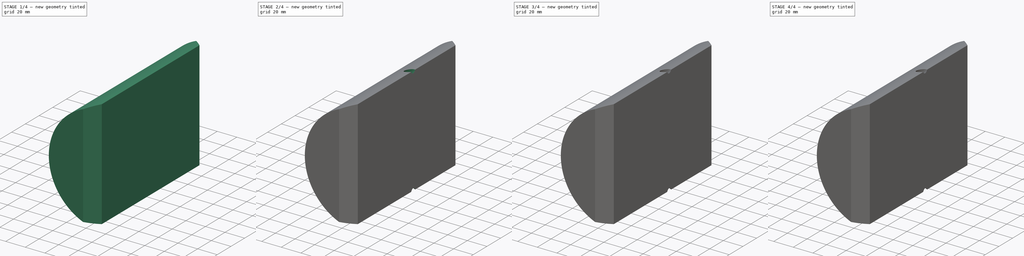
[diagram: build sequence overview — one tinted view per stage of 4, left to right]
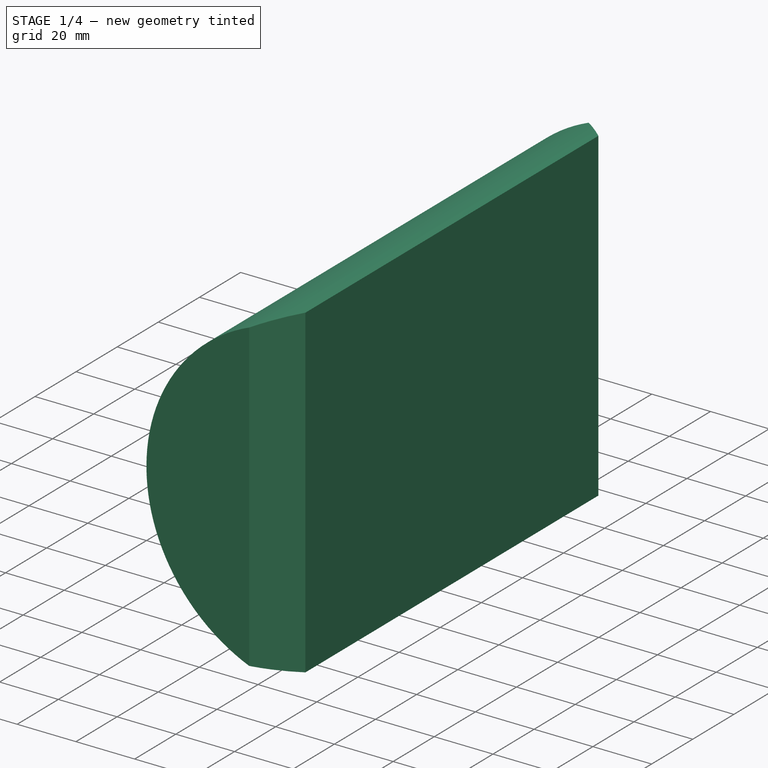
[diagram: stage 1 of 4 — iso view after this stage's code; geometry added in this stage tinted green]
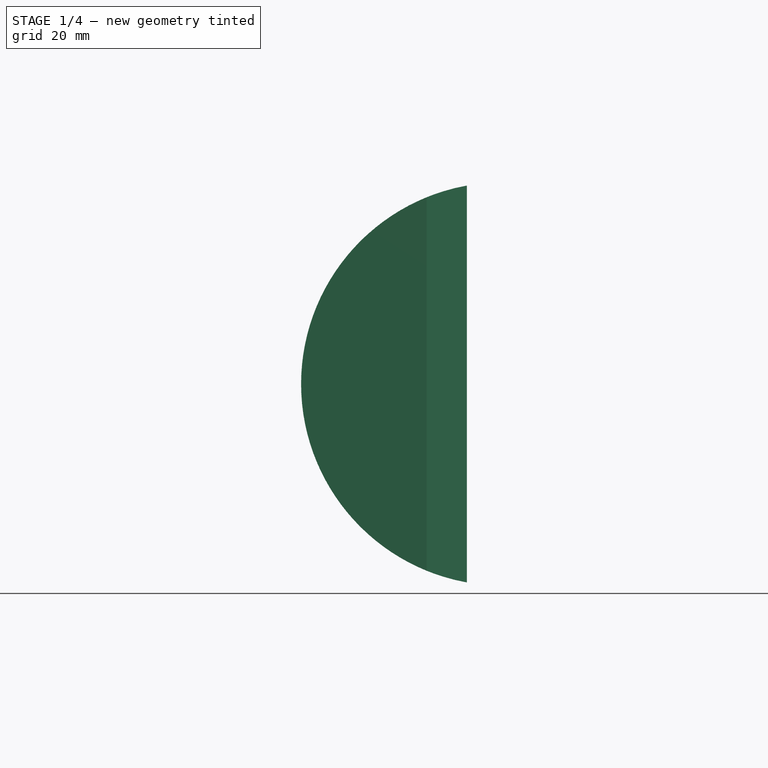
[diagram: stage 1 of 4 — front view after this stage's code; geometry added in this stage tinted green]
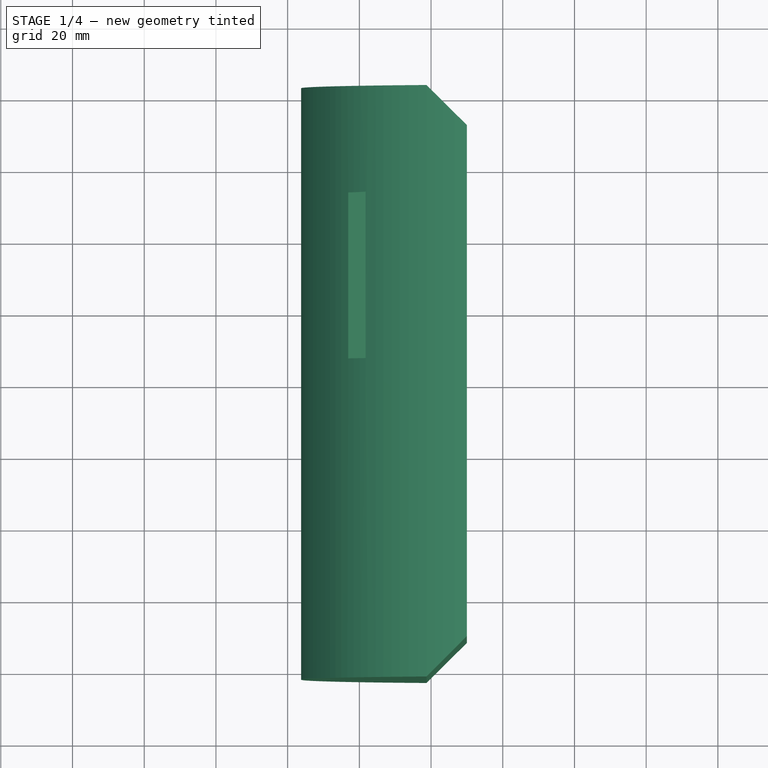
[diagram: stage 1 of 4 — top view after this stage's code; geometry added in this stage tinted green]
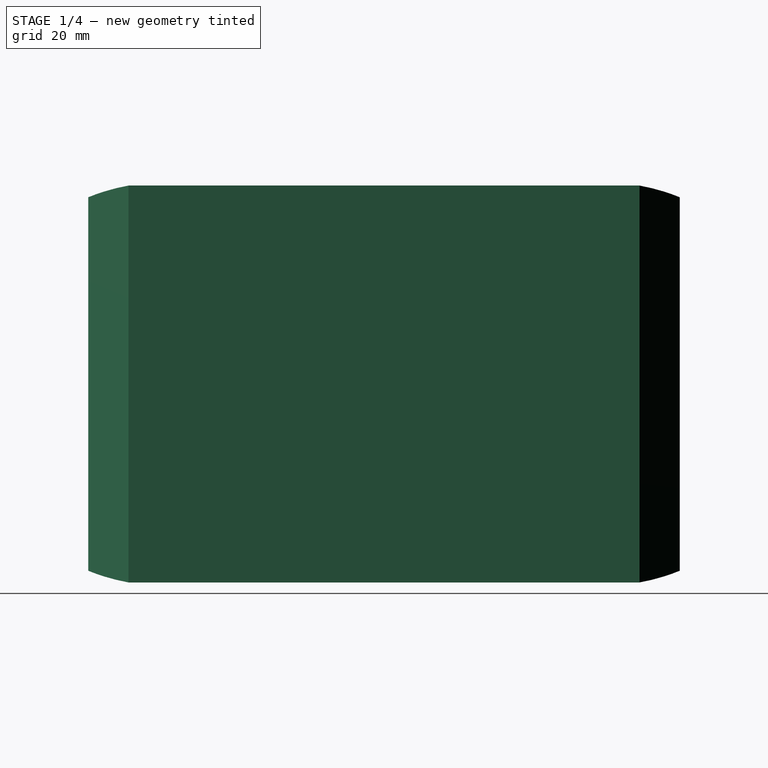
[diagram: stage 1 of 4 — right view after this stage's code; geometry added in this stage tinted green]
FCSTD DOCUMENT  (FreeCAD 2023.114R26244 +5346 (Git))
Label: Body
License: All rights reserved
LicenseURL: http://en.wikipedia.org/wiki/All_rights_reserved
objects: Sketcher::SketchObject×8, PartDesign::Pocket×5, PartDesign::Chamfer×2, PartDesign::Hole×2, PartDesign::Mirrored×2, PartDesign::Pad×1, PartDesign::PolarPattern×1, Spreadsheet::Sheet×1, PartDesign::Body×1
note: 56 computed .brp shape members not serialized (recipe doc carries the construction recipe); baked Part::Feature solids carry a one-line shape summary decoded from their .brp

FEATURE [Sketcher::SketchObject] Sketch
  ArcFitTolerance = 1e-06
  AttachmentSupport = -> [XZ_Plane]
  ExternalBSplineMaxDegree = 5
  ExternalBSplineTolerance = 0.0001
  FullyConstrained = true
  InternalTolerance = 1e-06
  InvalidShape = false
  MakeInternals = true
  MapMode = 5
  Placement = pos=(0,0,0) rot=(1,0,0;1.5708rad)
  Support = -> [XZ_Plane]
  TreeRank = 11
  ValidateShape = true
  expr: Constraints[4] = -0.5 * <<V>>.gap_width
  expr: Constraints[5] = 0.75 * <<V>>.d_pipe * 0.5
  sketch-geometry (2):
    g0: ArcOfCircle CenterX=0 CenterY=0 CenterZ=0 NormalX=0 NormalY=0 NormalZ=1 AngleXU=0 Radius=56.25 StartAngle=1.74952 EndAngle=4.53366
    g1: LineSegment StartX=-10 StartY=55.354 StartZ=0 EndX=-10 EndY=-55.354 EndZ=0
  constraints (6):
    c: Coincident(g0,g-1)
    c: Coincident(g1,g0)
    c: Vertical(g1)
    c: Coincident(g0,g1)
    c: DistanceX(g-2,g0) = -10
    c: Radius(g0) = 56.25
FEATURE [PartDesign::Pad] Pad
  AddSubType = 0
  AlongSketchNormal = false
  AutoTaperInnerAngle = true
  CheckUpToFaceLimits = true
  ClaimChildren = false
  Direction = (0,-1,-2e-16)
  Fit = 0
  FitJoin = 0
  InnerFit = 0
  InnerFitJoin = 0
  InvalidShape = false
  Length = 165
  Length2 = 100
  Linearize = true
  Midplane = true
  NewSolid = false
  Profile = -> Sketch
  Refine = true
  Suppress = false
  TaperInnerAngle = 0
  TaperInnerAngleRev = 0
  TreeRank = 12
  Type = 0
  ValidateShape = true
  _ProfileBasedVersion = 1
  expr: Length = 1.1 * <<V>>.d_pipe
FEATURE [PartDesign::Chamfer] Chamfer
  AddSubType = 0
  Angle = 45
  Base = -> Pad [Edge6,Edge5]
  BaseFeature = -> Pad
  ChamferType = 0
  FlipDirection = false
  InvalidShape = false
  NewSolid = false
  Refine = true
  Size = 11.25
  Size2 = 1
  SupportTransform = false
  Suppress = false
  TreeRank = 13
  ValidateShape = true
  expr: Size = 0.075 * <<V>>.d_pipe
FEATURE [Sketcher::SketchObject] Sketch001
  ArcFitTolerance = 1e-06
  AttachmentOffset = pos=(0,0,0) rot=(0,1,0;0.698132rad)
  AttachmentSupport = -> [XY_Plane]
  ExternalBSplineMaxDegree = 5
  ExternalBSplineTolerance = 0.0001
  ExternalGeometry = -> [Chamfer]
  FullyConstrained = true
  InternalTolerance = 1e-06
  InvalidShape = false
  MakeInternals = true
  MapMode = 5
  Placement = pos=(0,0,0) rot=(0,1,0;0.698132rad)
  Support = -> [XY_Plane]
  TreeRank = 15
  ValidateShape = true
  expr: Constraints[10] = <<V>>.arm_length
  expr: Constraints[13] = <<V>>.d_wheel / 2
  expr: Constraints[15] = <<V>>.d_pipe * 0.05
  expr: Constraints[1] = <<V>>.a_extrusion / 2 + 2
  expr: Constraints[2] = <<V>>.d_wheel / 2 + <<V>>.t
  expr: Constraints[3] = <<V>>.a_extrusion / 2 + <<V>>.t
  sketch-geometry (7):
    g0: LineSegment StartX=-42.2497 StartY=9.52046 StartZ=0 EndX=-42.2497 EndY=55.0132 EndZ=0
    g1: ArcOfCircle CenterX=-46.7497 CenterY=64.5 CenterZ=0 NormalX=0 NormalY=0 NormalZ=1 AngleXU=0 Radius=10.5 StartAngle=5.1553 EndAngle=7.85398
    g2: LineSegment StartX=-46.7497 StartY=75 StartZ=0 EndX=-56.7497 EndY=75 EndZ=0
    g3: ArcOfCircle CenterX=-45.2497 CenterY=9.52046 CenterZ=0 NormalX=0 NormalY=0 NormalZ=1 AngleXU=0 Radius=3 StartAngle=4.71239 EndAngle=6.28319
    g4: LineSegment StartX=-56.7497 StartY=75 StartZ=0 EndX=-56.7497 EndY=6.52046 EndZ=0
    g5: LineSegment StartX=-56.7497 StartY=6.52046 StartZ=0 EndX=-45.2497 EndY=6.52046 EndZ=0
    g6: ArcOfCircle CenterX=-42.2497 CenterY=9.52046 CenterZ=0 NormalX=0 NormalY=0 NormalZ=1 AngleXU=0 Radius=45.4927 StartAngle=1.5708 EndAngle=1.89519
  constraints (21):
    c: Coincident(g1,g0)
    c: Distance(g1,g0) = 4.5
    c: Radius(g1) = 10.5
    c: Radius(g3) = 3
    c: Coincident(g2,g4)
    c: Coincident(g4,g5)
    c: Coincident(g5,g3)
    c: Tangent(g5,g3,g3) = -1.5708
    c: Tangent(g0,g3) = -1.5708
    c: Tangent(g1,g2) = -1.5708
    c: Distance(g1,g3) = 55
    c: Vertical(g4)
    c: Horizontal(g2)
    c: Distance(g2) = 10
    c: DistanceX(g2,g-3) = 0.5
    c: DistanceY(g2,g-3) = 7.5
    c: Vertical(g0)
    c: Horizontal(g5)
    c: Coincident(g6,g0)
    c: Coincident(g6,g0)
    c: PointOnObject(g6,g4)
FEATURE [PartDesign::Pocket] Pocket
  AddSubType = 1
  AutoTaperInnerAngle = true
  BaseFeature = -> Chamfer
  CheckUpToFaceLimits = true
  ClaimChildren = false
  Fit = 0
  FitJoin = 0
  InnerFit = 0
  InnerFitJoin = 0
  InvalidShape = false
  Length = 7
  Length2 = 100
  Linearize = true
  NewSolid = false
  Profile = -> Sketch001 [InternalFace1]
  Refine = true
  Reversed = true
  Suppress = false
  TaperInnerAngle = 0
  TaperInnerAngleRev = 0
  TreeRank = 17
  Type = 0
  ValidateShape = true
  _ProfileBasedVersion = 1
  _Version = 1
  expr: Length = <<V>>.a_extrusion + 2
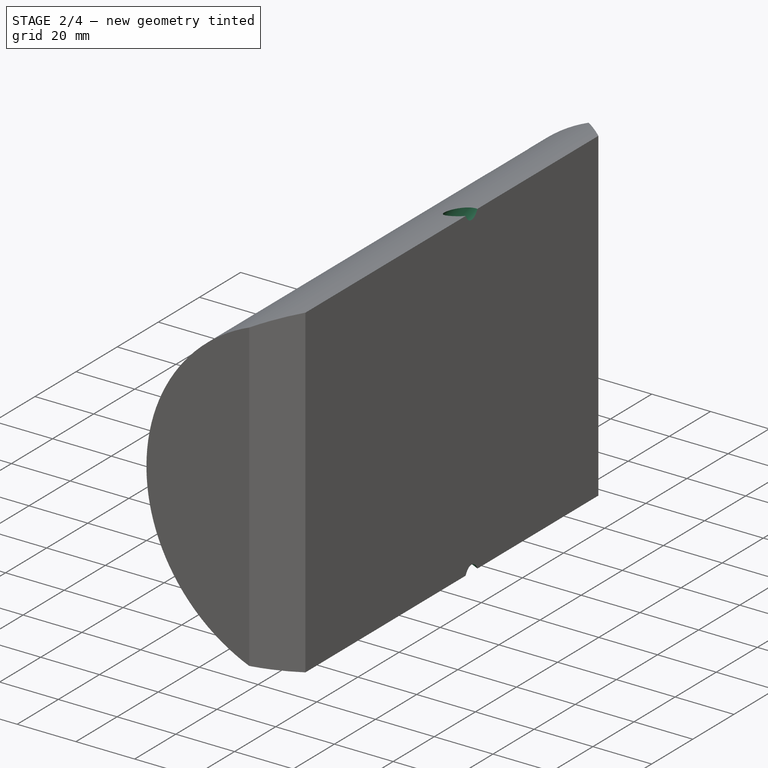
[diagram: stage 2 of 4 — iso view after this stage's code; geometry added in this stage tinted green]
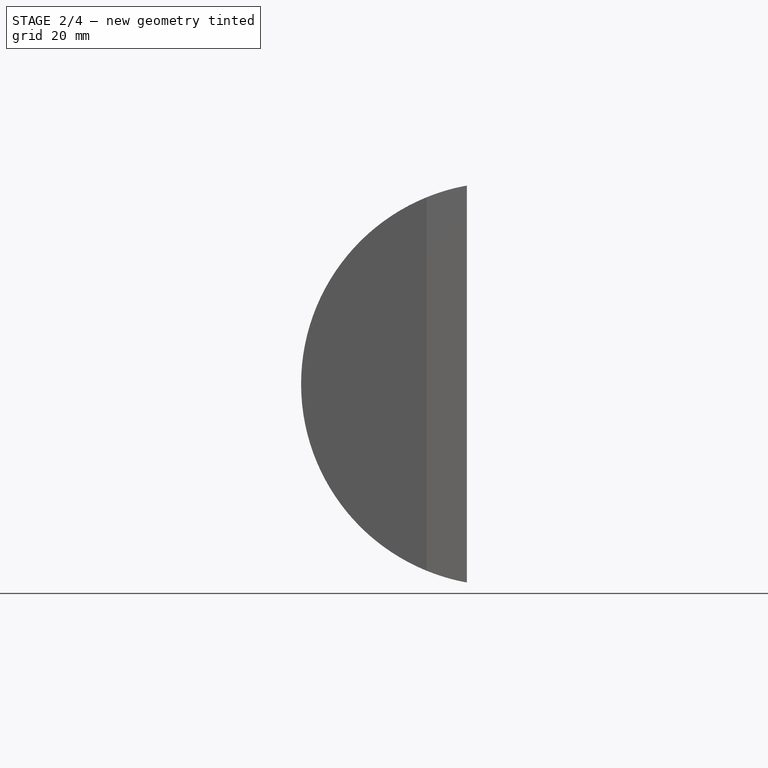
[diagram: stage 2 of 4 — front view after this stage's code; geometry added in this stage tinted green]
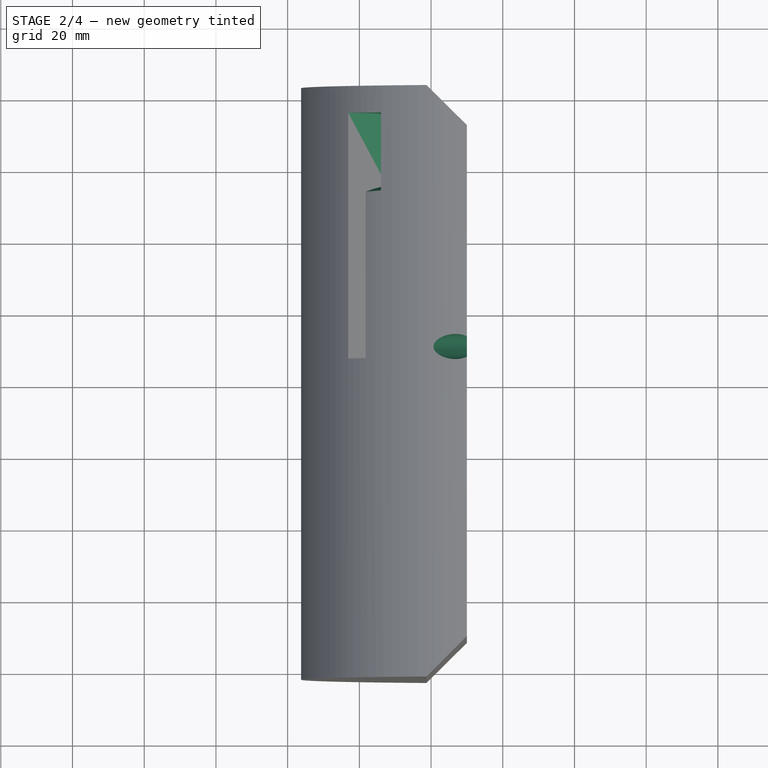
[diagram: stage 2 of 4 — top view after this stage's code; geometry added in this stage tinted green]
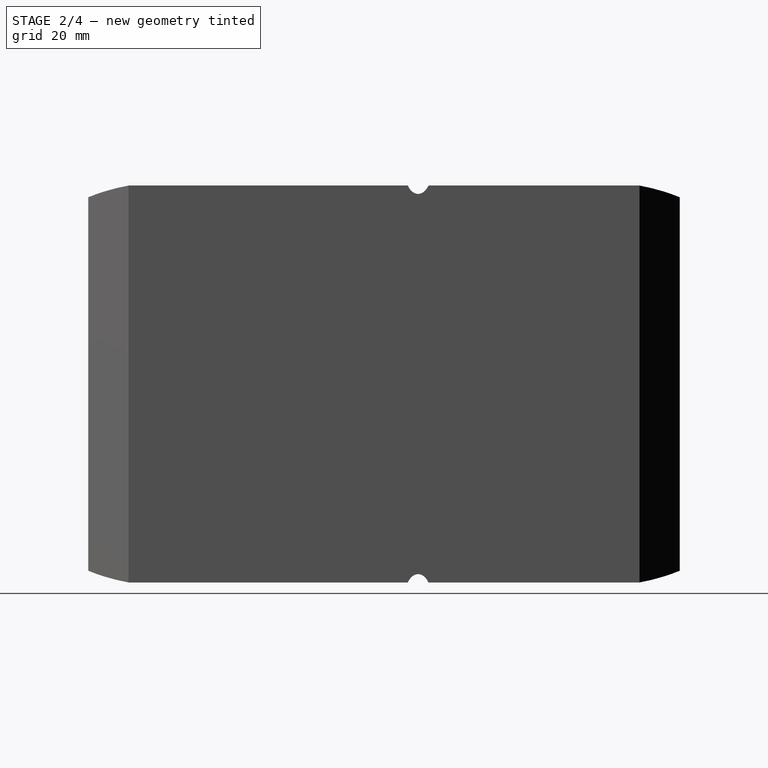
[diagram: stage 2 of 4 — right view after this stage's code; geometry added in this stage tinted green]
FEATURE [PartDesign::Pocket] Pocket001
  AddSubType = 1
  AutoTaperInnerAngle = true
  BaseFeature = -> Pocket
  CheckUpToFaceLimits = true
  ClaimChildren = false
  Fit = 0
  FitJoin = 0
  InnerFit = 0
  InnerFitJoin = 0
  InvalidShape = false
  Length = 12.5
  Length2 = 100
  Linearize = true
  NewSolid = false
  Profile = -> Sketch001 [InternalFace2]
  Refine = true
  Reversed = true
  Suppress = false
  TaperInnerAngle = 0
  TaperInnerAngleRev = 0
  TreeRank = 18
  Type = 0
  ValidateShape = true
  _ProfileBasedVersion = 1
  _Version = 1
  expr: Length = <<V>>.a_extrusion * 2.5
FEATURE [Sketcher::SketchObject] Sketch003
  ArcFitTolerance = 1e-06
  AttachmentOffset = pos=(0,0,100) rot=(0,0,1;0rad)
  AttachmentSupport = -> [Sketch001]
  ExternalBSplineMaxDegree = 5
  ExternalBSplineTolerance = 0.0001
  ExternalGeometry = -> [Sketch001]
  FullyConstrained = true
  InternalTolerance = 1e-06
  InvalidShape = false
  MakeInternals = true
  MapMode = 5
  Placement = pos=(64.2788,1e-16,76.6044) rot=(0,1,0;0.698132rad)
  Support = -> [Sketch001]
  TreeRank = 20
  ValidateShape = true
  sketch-geometry (1):
    g0: Circle CenterX=-45.2497 CenterY=9.52046 CenterZ=0 NormalX=0 NormalY=0 NormalZ=1 AngleXU=0 Radius=1.5
  constraints (2):
    c: Coincident(g0,g-3)
    c: Diameter(g0) = 3
FEATURE [PartDesign::Hole] Hole
  AddSubType = 1
  BaseFeature = -> Pocket001
  ClaimChildren = false
  CustomThreadClearance = 0
  Depth = 105
  DepthType = 0
  Diameter = 3.2
  DrillForDepth = false
  DrillPoint = 1
  DrillPointAngle = 118
  Fit = 0
  FitJoin = 0
  HoleCutCountersinkAngle = 90
  HoleCutCustomValues = false
  HoleCutDepth = 90
  HoleCutDiameter = 7
  HoleCutType = 1
  InnerFit = 0
  InnerFitJoin = 0
  InvalidShape = false
  Linearize = true
  ModelThread = false
  NewSolid = false
  Profile = -> Sketch003 [Edge1]
  Refine = true
  Suppress = false
  Tapered = false
  TaperedAngle = 90
  ThreadClass = 0
  ThreadDepth = 105
  ThreadDepthType = 0
  ThreadDirection = 0
  ThreadFit = 1
  ThreadSize = 9
  ThreadType = 1
  Threaded = false
  TreeRank = 21
  UseCustomThreadClearance = false
  ValidateShape = true
  _ProfileBasedVersion = 1
  expr: HoleCutDepth = 95 - <<V>>.a_extrusion
FEATURE [PartDesign::Mirrored] Mirrored
  AddSubType = 0
  BaseFeature = -> Hole
  CopyShape = false
  InvalidShape = false
  MirrorPlane = -> XY_Plane
  NewSolid = false
  OriginalSubs = -> [Hole,Pocket001,Pocket]
  Originals = -> [Hole,Pocket001,Pocket]
  ParallelTransform = true
  Refine = true
  SubTransform = true
  Suppress = false
  TreeRank = 22
  ValidateShape = true
  _Version = 3
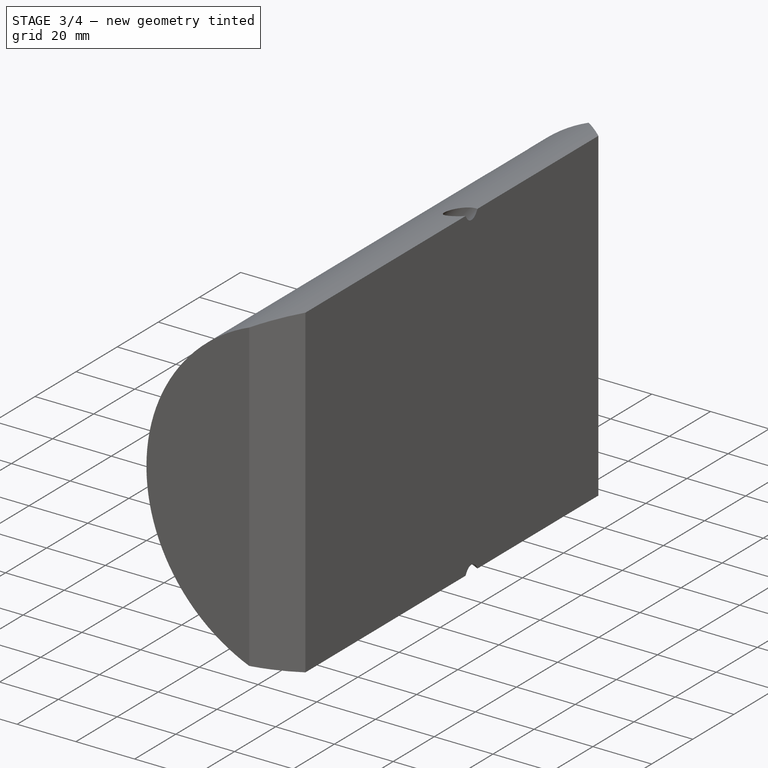
[diagram: stage 3 of 4 — iso view after this stage's code; geometry added in this stage tinted green]
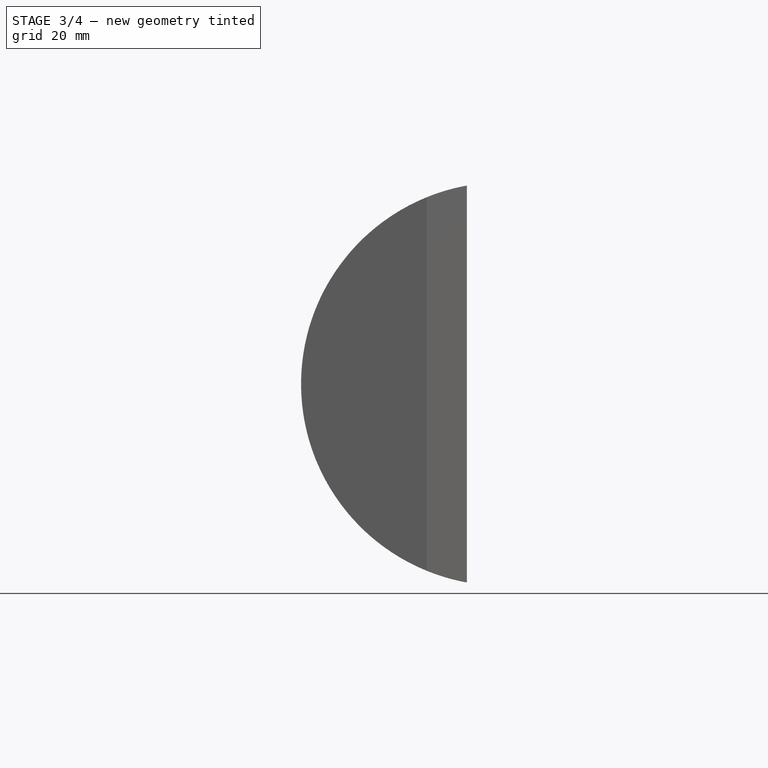
[diagram: stage 3 of 4 — front view after this stage's code; geometry added in this stage tinted green]
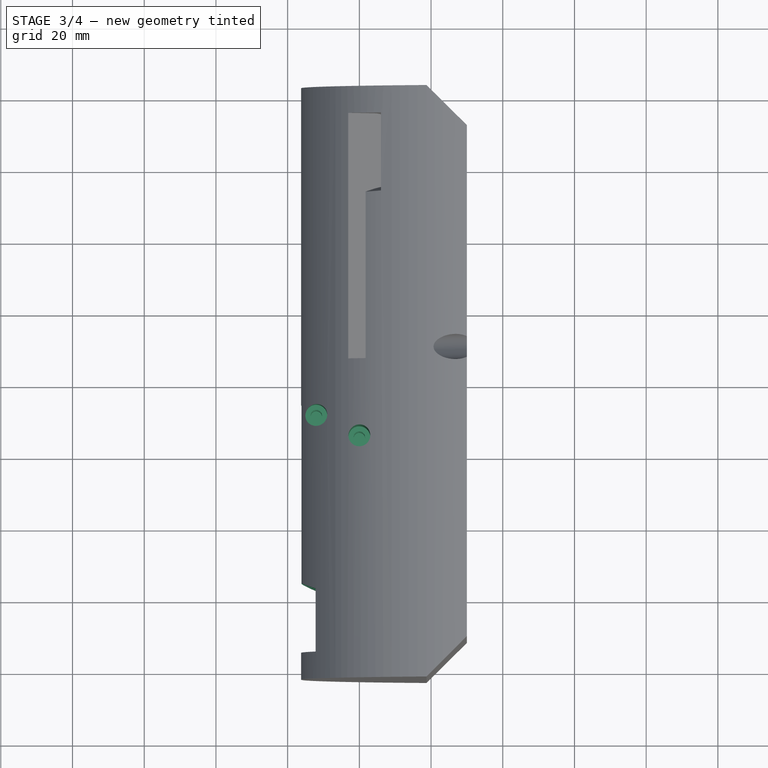
[diagram: stage 3 of 4 — top view after this stage's code; geometry added in this stage tinted green]
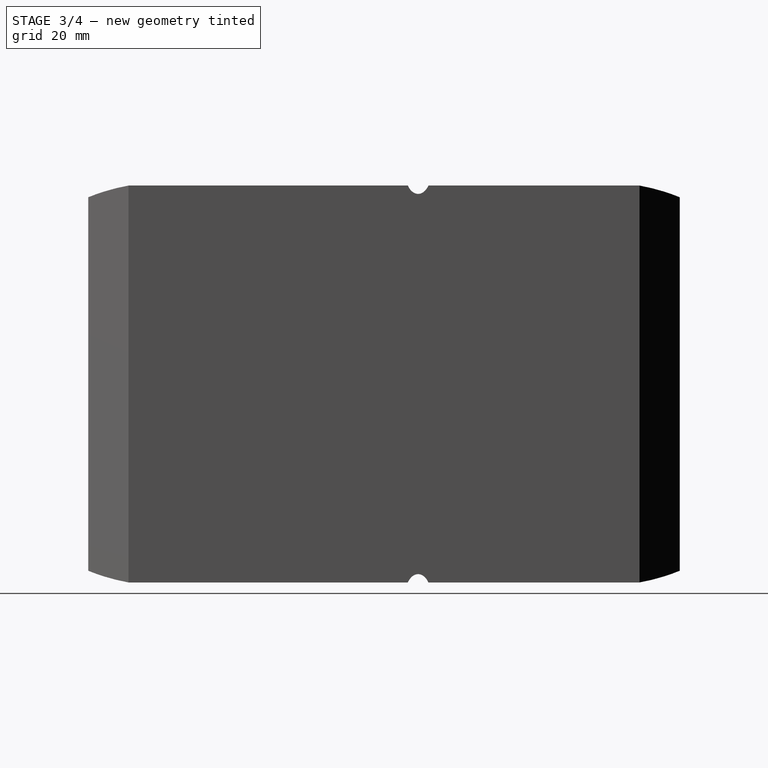
[diagram: stage 3 of 4 — right view after this stage's code; geometry added in this stage tinted green]
FEATURE [Sketcher::SketchObject] Sketch004
  ArcFitTolerance = 1e-06
  AttachmentSupport = -> [XY_Plane]
  ExternalBSplineMaxDegree = 5
  ExternalBSplineTolerance = 0.0001
  ExternalGeometry = -> [Mirrored]
  FullyConstrained = true
  InternalTolerance = 1e-06
  InvalidShape = false
  MakeInternals = true
  MapMode = 5
  Support = -> [XY_Plane]
  TreeRank = 23
  ValidateShape = true
  expr: Constraints[10] = <<V>>.d_wheel + <<V>>.t
  expr: Constraints[18] = <<V>>.a_extrusion * 0.5 + <<V>>.t
  expr: Constraints[19] = 15
  expr: Constraints[23] = <<V>>.arm_length - 10
  expr: Constraints[2] = <<V>>.d_wheel * 0.6
  expr: Constraints[32] = <<V>>.d_pipe * 0.05
  sketch-geometry (15):
    g0: ArcOfCircle CenterX=-52.0001 CenterY=-9 CenterZ=0 NormalX=0 NormalY=0 NormalZ=1 AngleXU=0 Radius=3 StartAngle=1.10715 EndAngle=1.5708
    g1: ArcOfCircle CenterX=-40.0001 CenterY=-15 CenterZ=0 NormalX=0 NormalY=0 NormalZ=1 AngleXU=0 Radius=3 StartAngle=0 EndAngle=1.10715
    g2: LineSegment StartX=-50.6584 StartY=-6.31672 StartZ=0 EndX=-38.6584 EndY=-12.3167 EndZ=0
    g3: LineSegment StartX=-56.2501 StartY=-55.6748 StartZ=0 EndX=-56.2501 EndY=-75 EndZ=0
    g4: LineSegment StartX=-56.2501 StartY=-75 StartZ=0 EndX=-35.7501 EndY=-75 EndZ=0
    g5: LineSegment StartX=-35.7501 StartY=-75 StartZ=0 EndX=-35.7501 EndY=-60 EndZ=0
    g6: LineSegment StartX=-52.0001 StartY=-6 StartZ=0 EndX=-56.2501 EndY=-6 EndZ=0
    g7: LineSegment StartX=-56.2501 StartY=-6 StartZ=0 EndX=-56.2501 EndY=-55.6748 EndZ=0
    g8: LineSegment StartX=-37.0001 StartY=-15 StartZ=0 EndX=-37.0001 EndY=-60 EndZ=0
    g9: LineSegment StartX=-37.0001 StartY=-60 StartZ=0 EndX=-35.7501 EndY=-60 EndZ=0
    g10: ArcOfCircle CenterX=-37.0001 CenterY=-15 CenterZ=0 NormalX=0 NormalY=0 NormalZ=1 AngleXU=0 Radius=45 StartAngle=4.27036 EndAngle=4.71239
    g11: LineSegment [constr] StartX=-52.0001 StartY=-9 StartZ=0 EndX=-46.0001 EndY=-12 EndZ=0
    g12: LineSegment [constr] StartX=-40.0001 StartY=-15 StartZ=0 EndX=-46.0001 EndY=-12 EndZ=0
    g13: LineSegment [constr] StartX=-35.7501 StartY=-75 StartZ=0 EndX=-46.0001 EndY=-12 EndZ=0
    g14: LineSegment [constr] StartX=-56.2501 StartY=-75 StartZ=0 EndX=-46.0001 EndY=-12 EndZ=0
  constraints (43):
    c: Equal(g1,g0)
    c: DistanceY(g1,g0) = 6
    c: DistanceX(g0,g1) = 12
    c: Coincident(g2,g0)
    c: Coincident(g2,g1)
    c: Coincident(g3,g4)
    c: Coincident(g4,g5)
    c: Horizontal(g4)
    c: Vertical(g3)
    c: Vertical(g5)
    c: Distance(g4) = 20.5
    c: DistanceX(g-3,g3) = -0.01
    c: Coincident(g6,g0)
    c: Vertical(g6,g3)
    c: Horizontal(g6)
    c: Tangent(g6,g0,g0) = -1.5708
    c: Tangent(g2,g0,g0) = 1.5708
    c: Tangent(g1,g2,g1) = 1.5708
    c: Radius(g1) = 3
    c: Distance(g5) = 15
    c: Coincident(g7,g6)
    c: Coincident(g8,g1)
    c: Vertical(g8)
    c: Distance(g8) = 45
    c: Tangent(g1,g8,g1) = 1.5708
    c: Coincident(g9,g8)
    c: Coincident(g9,g5)
    c: Horizontal(g9)
    c: Coincident(g10,g8)
    c: Coincident(g10,g1)
    c: Coincident(g7,g3)
    c: Coincident(g3,g10)
    c: Distance(g3,g-4) = 7.5
    c: Coincident(g11,g0)
    c: Coincident(g12,g1)
    c: Coincident(g12,g11)
    c: Tangent(g12,g11,g11) = 1.5708
    c: Equal(g11,g12)
    c: Coincident(g13,g4)
    c: Coincident(g14,g3)
    c: Coincident(g14,g13)
    c: Equal(g13,g14)
    c: Coincident(g11,g13)
FEATURE [PartDesign::Pocket] Pocket002
  AddSubType = 1
  AutoTaperInnerAngle = true
  BaseFeature = -> Mirrored
  CheckUpToFaceLimits = true
  ClaimChildren = false
  Fit = 0
  FitJoin = 0
  InnerFit = 0
  InnerFitJoin = 0
  InvalidShape = false
  Length = 7
  Length2 = 100
  Linearize = true
  Midplane = true
  NewSolid = false
  Profile = -> Sketch004 [InternalFace1]
  Refine = true
  Suppress = false
  TaperInnerAngle = 0
  TaperInnerAngleRev = 0
  TreeRank = 24
  Type = 0
  ValidateShape = true
  _ProfileBasedVersion = 1
  _Version = 1
  expr: Length = <<V>>.a_extrusion + 2
FEATURE [PartDesign::Pocket] Pocket003
  AddSubType = 1
  AutoTaperInnerAngle = true
  BaseFeature = -> Pocket002
  CheckUpToFaceLimits = true
  ClaimChildren = false
  Fit = 0
  FitJoin = 0
  InnerFit = 0
  InnerFitJoin = 0
  InvalidShape = false
  Length = 42
  Length2 = 100
  Linearize = true
  Midplane = true
  NewSolid = false
  Profile = -> Sketch004 [InternalFace2]
  Refine = true
  Suppress = false
  TaperInnerAngle = 0
  TaperInnerAngleRev = 0
  TreeRank = 27
  Type = 0
  ValidateShape = true
  _ProfileBasedVersion = 1
  _Version = 1
FEATURE [Sketcher::SketchObject] Sketch005
  ArcFitTolerance = 1e-06
  AttachmentSupport = -> [XY_Plane]
  ExternalBSplineMaxDegree = 5
  ExternalBSplineTolerance = 0.0001
  FullyConstrained = false
  InternalTolerance = 1e-06
  InvalidShape = false
  MakeInternals = true
  MapMode = 5
  Support = -> [XY_Plane]
  TreeRank = 26
  ValidateShape = true
  sketch-geometry (12):
    g0: ArcOfCircle CenterX=50.4849 CenterY=-51.0132 CenterZ=0 NormalX=0 NormalY=0 NormalZ=1 AngleXU=0 Radius=5 StartAngle=3.59219 EndAngle=6.73378
    g1: ArcOfCircle CenterX=20 CenterY=12 CenterZ=0 NormalX=0 NormalY=0 NormalZ=1 AngleXU=0 Radius=5 StartAngle=0.450593 EndAngle=3.59219
    g2: LineSegment StartX=54.9859 StartY=-48.8357 StartZ=0 EndX=24.5009 EndY=14.1775 EndZ=0
    g3: LineSegment StartX=15.4991 StartY=9.8225 StartZ=0 EndX=45.984 EndY=-53.1907 EndZ=0
    g4: ArcOfCircle CenterX=30.4849 CenterY=-63.0132 CenterZ=0 NormalX=0 NormalY=0 NormalZ=1 AngleXU=0 Radius=5 StartAngle=3.59219 EndAngle=6.73378
    g5: ArcOfCircle CenterX=0 CenterY=0 CenterZ=0 NormalX=0 NormalY=0 NormalZ=1 AngleXU=0 Radius=5 StartAngle=0.450593 EndAngle=3.59219
    g6: LineSegment StartX=34.9859 StartY=-60.8357 StartZ=0 EndX=4.50095 EndY=2.1775 EndZ=0
    g7: LineSegment StartX=-4.50095 StartY=-2.1775 StartZ=0 EndX=25.984 EndY=-65.1907 EndZ=0
    g8: ArcOfCircle CenterX=41.492 CenterY=111.619 CenterZ=0 NormalX=0 NormalY=0 NormalZ=1 AngleXU=0 Radius=7.45731 StartAngle=4.67486 EndAngle=7.81645
    g9: ArcOfCircle CenterX=13.3276 CenterY=112.676 CenterZ=0 NormalX=0 NormalY=0 NormalZ=1 AngleXU=0 Radius=7.45731 StartAngle=1.53327 EndAngle=4.67486
    g10: LineSegment StartX=41.7718 StartY=119.071 StartZ=0 EndX=13.6074 EndY=120.128 EndZ=0
    g11: LineSegment StartX=13.0478 StartY=105.224 StartZ=0 EndX=41.2122 EndY=104.167 EndZ=0
  constraints (23):
    c: Tangent(g0,g2) = -1.5708
    c: Tangent(g2,g1) = -1.5708
    c: Tangent(g1,g3) = -1.5708
    c: Tangent(g3,g0) = -1.5708
    c: Equal(g0,g1)
    c: Radius(g0) = 5
    c: Distance(g3) = 70
    c: Tangent(g4,g6) = -1.5708
    c: Tangent(g6,g5) = -1.5708
    c: Tangent(g5,g7) = -1.5708
    c: Tangent(g7,g4) = -1.5708
    c: Equal(g4,g5)
    c: Radius(g4) = 5
    c: Parallel(g7,g2)
    c: Distance(g7) = 70
    c: DistanceX(g5,g1) = 20
    c: DistanceY(g5,g1) = 12
    c: Coincident(g5,g-1)
    c: Tangent(g8,g10) = -1.5708
    c: Tangent(g10,g9) = -1.5708
    c: Tangent(g9,g11) = -1.5708
    c: Tangent(g11,g8) = -1.5708
    c: Equal(g8,g9)
FEATURE [Sketcher::SketchObject] Sketch006
  ArcFitTolerance = 1e-06
  AttachmentOffset = pos=(0,0,100) rot=(0,0,1;0rad)
  AttachmentSupport = -> [Sketch004]
  ExternalBSplineMaxDegree = 5
  ExternalBSplineTolerance = 0.0001
  ExternalGeometry = -> [Sketch004]
  FullyConstrained = true
  InternalTolerance = 1e-06
  InvalidShape = false
  MakeInternals = true
  MapMode = 5
  Placement = pos=(0,0,100) rot=(0,0,1;0rad)
  Support = -> [Sketch004]
  TreeRank = 28
  ValidateShape = true
  sketch-geometry (2):
    g0: Circle CenterX=-52.0001 CenterY=-9 CenterZ=0 NormalX=0 NormalY=0 NormalZ=1 AngleXU=0 Radius=1.5
    g1: Circle CenterX=-40.0001 CenterY=-15 CenterZ=0 NormalX=0 NormalY=0 NormalZ=1 AngleXU=0 Radius=1.5
  constraints (4):
    c: Coincident(g0,g-3)
    c: Coincident(g1,g-4)
    c: Equal(g1,g0)
    c: Diameter(g0) = 3
FEATURE [PartDesign::Hole] Hole001
  AddSubType = 1
  BaseFeature = -> Pocket003
  ClaimChildren = false
  CustomThreadClearance = 0
  Depth = 112
  DepthType = 0
  Diameter = 3.2
  DrillForDepth = false
  DrillPoint = 0
  DrillPointAngle = 118
  Fit = 0
  FitJoin = 0
  HoleCutCountersinkAngle = 90
  HoleCutCustomValues = false
  HoleCutDepth = 91.5
  HoleCutDiameter = 6.1
  HoleCutType = 1
  InnerFit = 0
  InnerFitJoin = 0
  InvalidShape = false
  Linearize = true
  ModelThread = false
  NewSolid = false
  Profile = -> Sketch006
  Refine = true
  Suppress = false
  Tapered = false
  TaperedAngle = 90
  ThreadClass = 0
  ThreadDepth = 112
  ThreadDepthType = 0
  ThreadDirection = 0
  ThreadFit = 1
  ThreadSize = 9
  ThreadType = 1
  Threaded = false
  TreeRank = 29
  UseCustomThreadClearance = false
  ValidateShape = true
  _ProfileBasedVersion = 1
FEATURE [Sketcher::SketchObject] Sketch012
  ArcFitTolerance = 1e-06
  AttachmentOffset = pos=(0,0,-200) rot=(0,0,1;0rad)
  AttachmentSupport = -> [YZ_Plane]
  ExternalBSplineMaxDegree = 5
  ExternalBSplineTolerance = 0.0001
  FullyConstrained = true
  InternalTolerance = 1e-06
  InvalidShape = false
  MakeInternals = true
  MapMode = 5
  Placement = pos=(-200,4.44e-14,-4.44e-14) rot=(0.57735,0.57735,0.57735;2.0944rad)
  Support = -> [YZ_Plane]
  TreeRank = 82
  ValidateShape = true
  sketch-geometry (1):
    g0: Circle CenterX=0 CenterY=0 CenterZ=0 NormalX=0 NormalY=0 NormalZ=1 AngleXU=0 Radius=1.5
  constraints (2):
    c: Coincident(g0,g-1)
    c: Diameter(g0) = 3
FEATURE [PartDesign::Pocket] Pocket006
  AddSubType = 1
  AutoTaperInnerAngle = true
  BaseFeature = -> Hole001
  CheckUpToFaceLimits = false
  ClaimChildren = false
  Fit = 0
  FitJoin = 0
  InnerFit = 0
  InnerFitJoin = 0
  InvalidShape = false
  Length = 0
  Length2 = 100
  Linearize = true
  NewSolid = false
  Offset = 12
  Profile = -> Sketch012
  Refine = true
  Reversed = true
  Suppress = false
  TaperInnerAngle = 0
  TaperInnerAngleRev = 0
  TreeRank = 83
  Type = 3
  UpToFace = -> Hole001 [Face1]
  ValidateShape = true
  _ProfileBasedVersion = 1
  _Version = 1
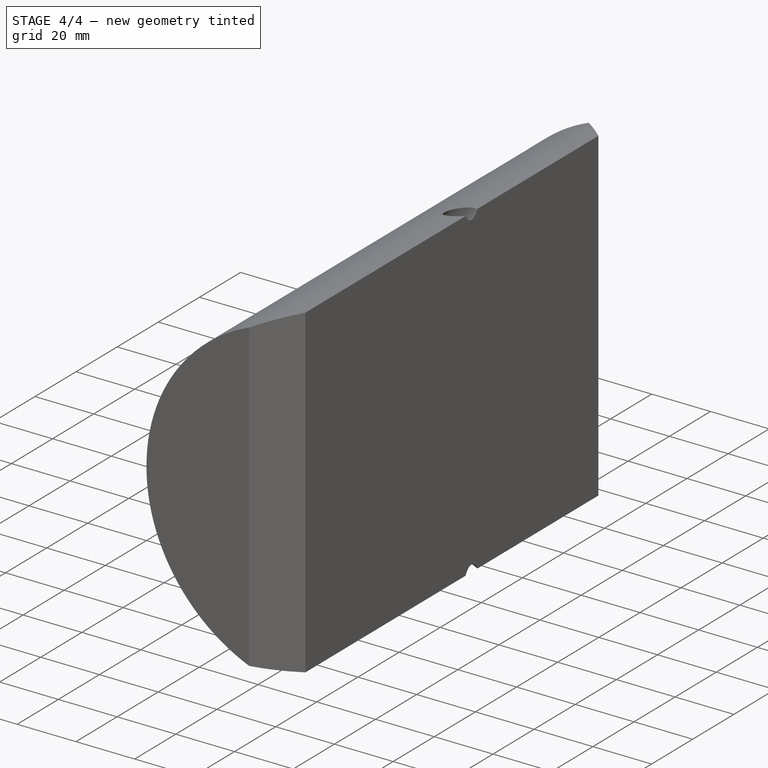
[diagram: stage 4 of 4 — iso view after this stage's code; geometry added in this stage tinted green]
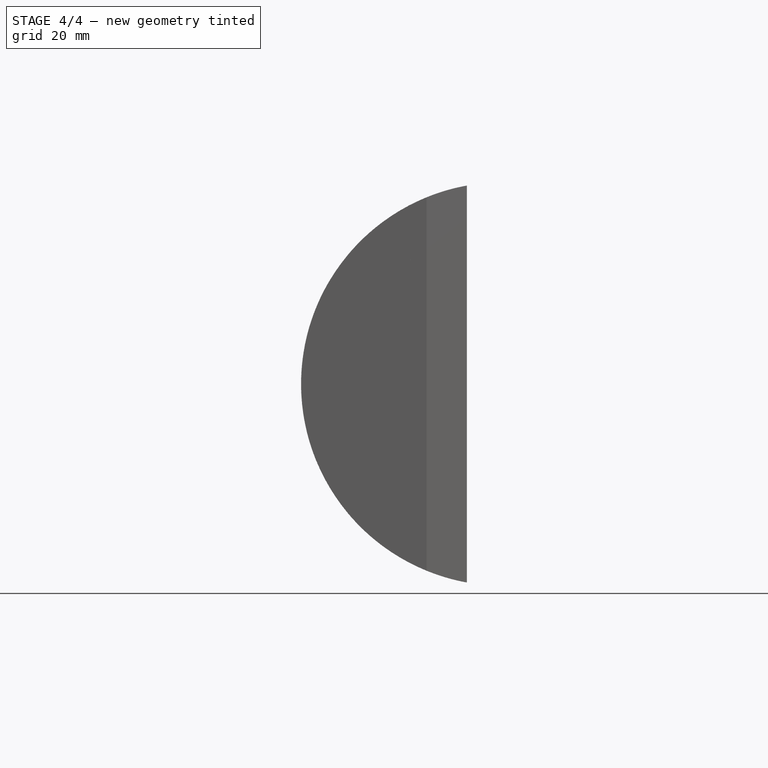
[diagram: stage 4 of 4 — front view after this stage's code; geometry added in this stage tinted green]
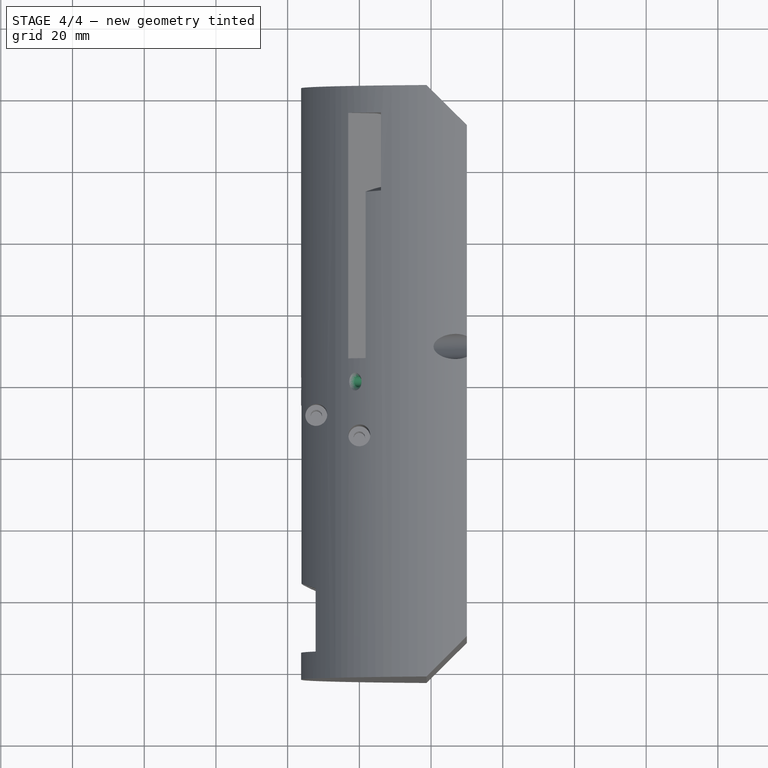
[diagram: stage 4 of 4 — top view after this stage's code; geometry added in this stage tinted green]
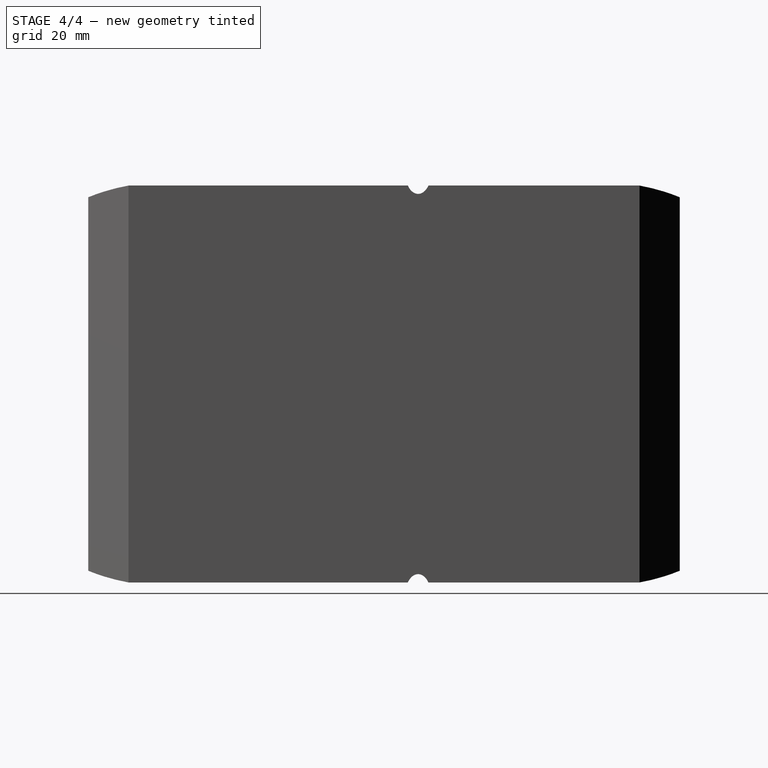
[diagram: stage 4 of 4 — right view after this stage's code; geometry added in this stage tinted green]
FEATURE [PartDesign::Chamfer] Chamfer003
  AddSubType = 0
  Angle = 45
  Base = -> Pocket006 [Edge23]
  BaseFeature = -> Pocket006
  ChamferType = 0
  FlipDirection = false
  InvalidShape = false
  NewSolid = false
  Refine = true
  Size = 1
  Size2 = 1
  SupportTransform = false
  Suppress = false
  TreeRank = 84
  ValidateShape = true
FEATURE [PartDesign::PolarPattern] PolarPattern002
  AddSubType = 0
  Angle = 43
  Axis = -> Y_Axis
  BaseFeature = -> Chamfer003
  CopyShape = false
  InvalidShape = false
  NewSolid = false
  Occurrences = 2
  OriginalSubs = -> [Chamfer003,Pocket006]
  Originals = -> [Chamfer003,Pocket006]
  ParallelTransform = true
  Refine = true
  SubTransform = true
  Suppress = false
  TreeRank = 85
  ValidateShape = true
  _Version = 3
FEATURE [PartDesign::Mirrored] Mirrored001
  AddSubType = 0
  BaseFeature = -> PolarPattern002
  CopyShape = false
  InvalidShape = false
  MirrorPlane = -> XY_Plane
  NewSolid = false
  ParallelTransform = true
  Refine = true
  SubTransform = true
  Suppress = false
  TreeRank = 86
  ValidateShape = true
  _Version = 3
FEATURE [Spreadsheet::Sheet] Spreadsheet  label="V"
  PythonMode = false
  ShowCells = 0
  TreeRank = 115
  cells = A1=d_pipe; B1(d_pipe)=150; A2=d_wheel; B2(d_wheel)=20; A3=a_extrusion; B3(a_extrusion)=5; A4=gap_width; B4(gap_width)=20; A5=arm_length; B5(arm_length)=55; C5=approx 0.35*d_pipe; A6=t; B6(t)=0.5; C6=tolerance
FEATURE [Sketcher::SketchObject] Sketch013
  ArcFitTolerance = 1e-06
  AttachmentSupport = -> [XY_Plane]
  ExternalBSplineMaxDegree = 5
  ExternalBSplineTolerance = 0.0001
  FullyConstrained = true
  InternalTolerance = 1e-06
  InvalidShape = false
  MakeInternals = true
  MapMode = 5
  Support = -> [XY_Plane]
  TreeRank = 113
  ValidateShape = true
FEATURE [PartDesign::Body] Body  label="Main_body"
  AutoGroupSolids = false
  ClaimAllChildren = false
  ExportMode = 0
  Group = -> [Sketch,Pad,Chamfer,Sketch001,Pocket,Pocket001,Sketch003,Hole,Mirrored,Sketch004,Pocket002,Pocket003,Sketch006,Sketch005,Hole001,Sketch012,Pocket006,Chamfer003,PolarPattern002,Mirrored001,Sketch013]
  InvalidShape = false
  Origin = -> Origin
  Tip = -> Mirrored001
  TreeRank = 114
  ValidateShape = true
  _ExportChildren = -> [Pad,Chamfer,Pocket,Pocket001,Hole,Mirrored,Pocket002,Pocket003,Sketch005,Hole001,Pocket006,Chamfer003,PolarPattern002,Mirrored001,Sketch013]
  _GroupVersion = 1
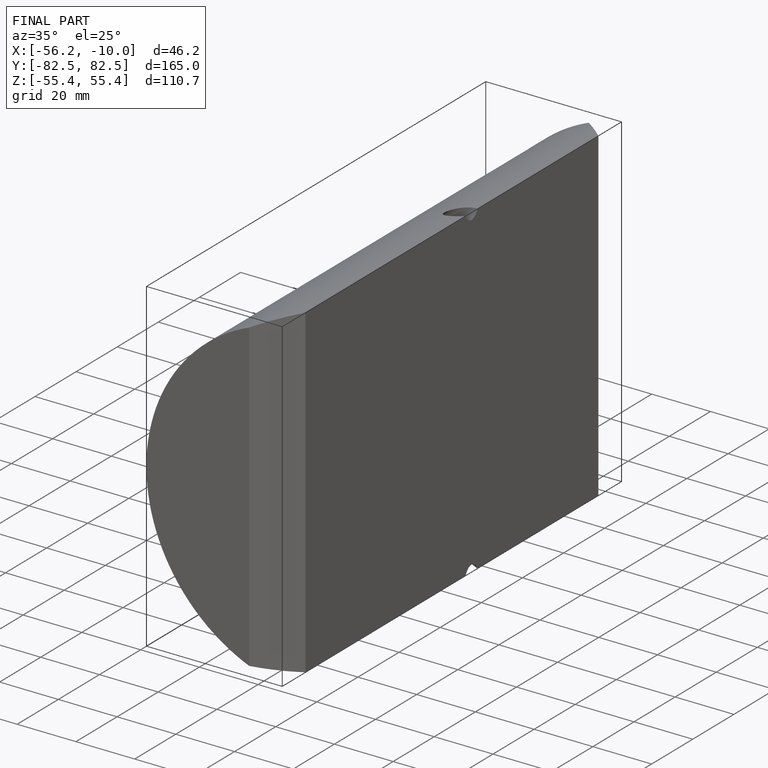
[diagram: finished part — iso view with bounding-box wireframe]
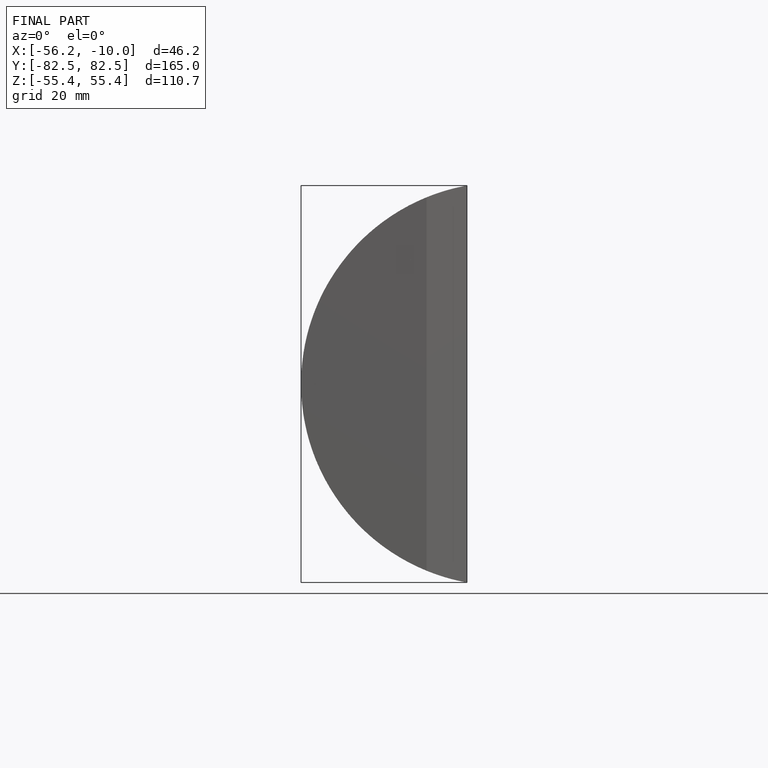
[diagram: finished part — front view with bounding-box wireframe]
